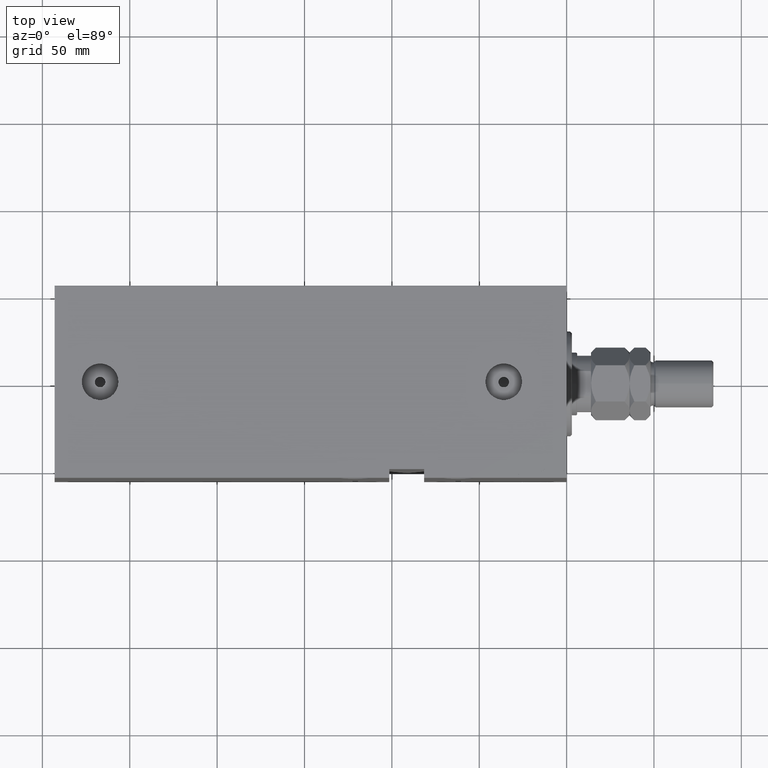
[diagram: clean part render]
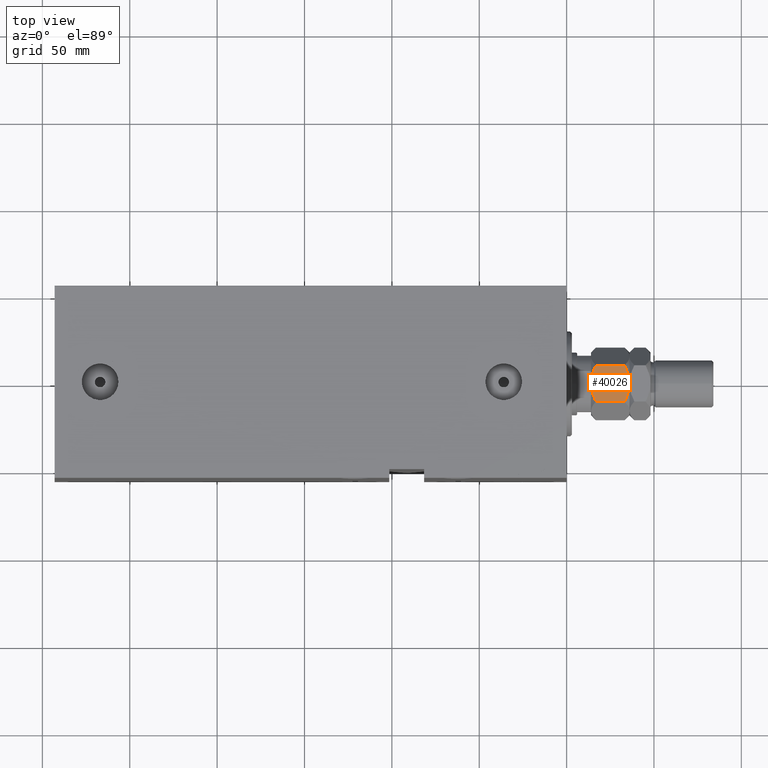
[diagram: same view with one face highlighted and labeled with its STEP entity id]
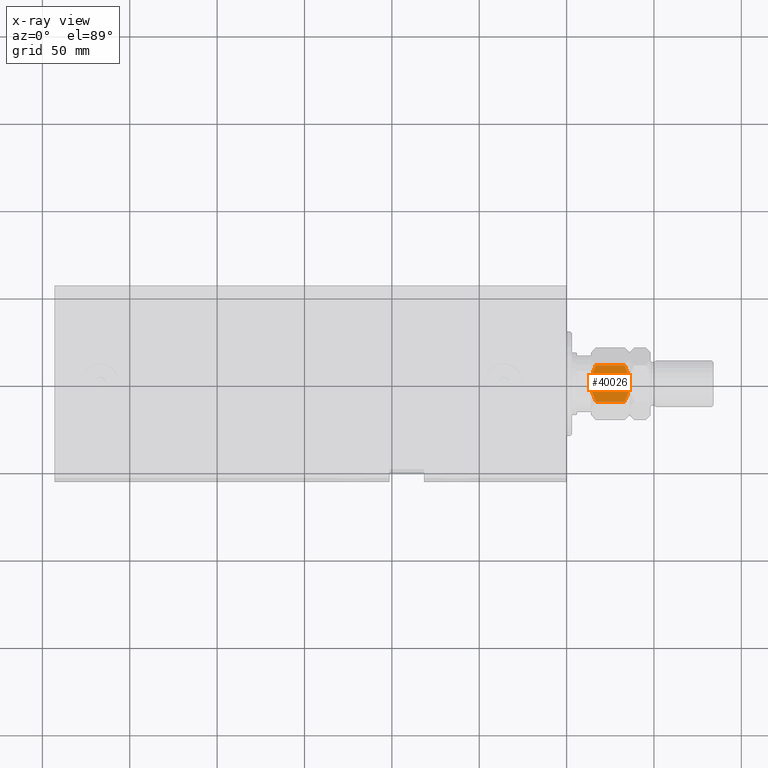
[diagram: x-ray of the same camera — body ghosted, the highlighted face saturated]
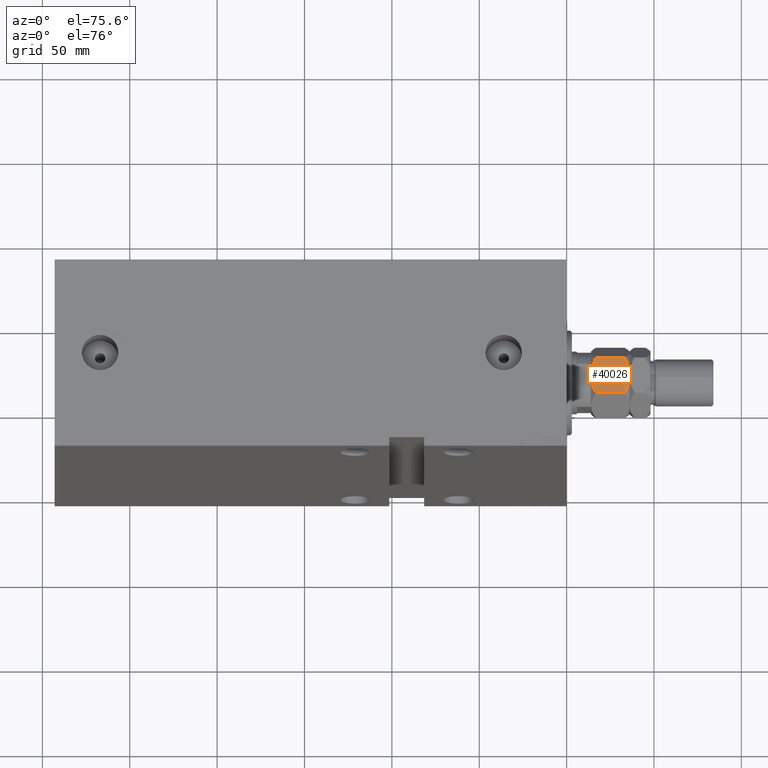
[diagram: same view with one face highlighted and labeled with its STEP entity id]
A machine part, top view. The second image highlights one B-rep face of the part: STEP entity #40026.
The next image is the same camera in x-ray: the body ghosted, the highlighted face saturated — about 0% of this face is hidden behind the body in this view.
A second angle (auxiliary view) of the same face is appended — the face is thin or edge-on in the first view.
In plain terms, the highlighted planar face has unit normal (-0, -0, -1).
Its self-contained STEP definition (entity closure, byte-faithful):
#9 = CARTESIAN_POINT ( 'NONE',  ( -18.00000000000000355, 8.761367480501975891, 2.004069294401323198 ) ) ;
#170 = CARTESIAN_POINT ( 'NONE',  ( -18.00000000000000000, -8.763088818352413156, 2.004854301028774266 ) ) ;
#1963 = ORIENTED_EDGE ( 'NONE', *, *, #25293, .F. ) ;
#2771 = VERTEX_POINT ( 'NONE', #23600 ) ;
#2942 = CARTESIAN_POINT ( 'NONE',  ( -18.00000000000000711, -6.216134505391694098, 20.97498393630432645 ) ) ;
#3028 = CARTESIAN_POINT ( 'NONE',  ( -18.00000000000000000, 10.39230484541327115, 2.784609690826521433 ) ) ;
#3634 = VERTEX_POINT ( 'NONE', #17308 ) ;
#3869 = CARTESIAN_POINT ( 'NONE',  ( -18.00000000000000000, -9.585738860786737092, 2.381326698513256179 ) ) ;
#5616 = DIRECTION ( 'NONE',  ( -0.000000000000000000, -0.000000000000000000, -1.000000000000000000 ) ) ;
#5729 = VERTEX_POINT ( 'NONE', #14358 ) ;
#6648 = CARTESIAN_POINT ( 'NONE',  ( -18.00000000000000000, -7.070713019734865767, 20.67653729751676650 ) ) ;
#7358 = CARTESIAN_POINT ( 'NONE',  ( -18.00000000000000000, -6.209292796908479239, 1.036623049275358754 ) ) ;
#8395 = B_SPLINE_CURVE_WITH_KNOTS ( 'NONE', 3,
 ( #34911, #39548, #31660, #17671, #42789, #32334, #14400, #10900, #45831, #9, #13949, #3028 ),
 .UNSPECIFIED., .F., .F.,
 ( 4, 2, 2, 2, 2, 4 ),
 ( 0.03866324973303089663, 0.04001676336829056158, 0.04137027700355023346, 0.04407730427406956336, 0.04678433154458890020, 0.04949135881510823010 ),
 .UNSPECIFIED. ) ;
#9698 = CARTESIAN_POINT ( 'NONE',  ( -18.00000000000000000, 10.39230484541327293, 19.21539030917347546 ) ) ;
#9816 = VERTEX_POINT ( 'NONE', #9698 ) ;
#10587 = CARTESIAN_POINT ( 'NONE',  ( -18.00000000000000355, -0.4570166227920087199, 22.00000000000001421 ) ) ;
#10900 = CARTESIAN_POINT ( 'NONE',  ( -18.00000000000000000, 6.216134505391694098, 1.025016063695673774 ) ) ;
#11118 = CARTESIAN_POINT ( 'NONE',  ( -18.00000000000000000, 10.39230484541327293, 22.00000000000000000 ) ) ;
#11932 = CARTESIAN_POINT ( 'NONE',  ( -18.00000000000000355, 3.606961701950826438, 21.71780071720124283 ) ) ;
#12126 = CARTESIAN_POINT ( 'NONE',  ( -18.00000000000000000, 10.39230484541327293, 22.00000000000000000 ) ) ;
#12384 = CARTESIAN_POINT ( 'NONE',  ( -18.00000000000000000, 9.585738860786747750, 19.61867330148673716 ) ) ;
#13408 = CARTESIAN_POINT ( 'NONE',  ( -17.99999999999999645, 0.000000000000000000, 22.00000000000000000 ) ) ;
#13858 = CARTESIAN_POINT ( 'NONE',  ( -18.00000000000000355, -3.606660380382266329, 21.66338348051975871 ) ) ;
#13949 = CARTESIAN_POINT ( 'NONE',  ( -18.00000000000000000, 9.585844502997485250, 2.381379519618630702 ) ) ;
#14337 = CARTESIAN_POINT ( 'NONE',  ( -18.00000000000000000, 0.000000000000000000, 0.000000000000000000 ) ) ;
#14358 = CARTESIAN_POINT ( 'NONE',  ( -18.00000000000000000, 0.000000000000000000, 0.000000000000000000 ) ) ;
#14400 = CARTESIAN_POINT ( 'NONE',  ( -18.00000000000000355, 4.484118396622230662, 0.5315467738039389989 ) ) ;
#14876 = CARTESIAN_POINT ( 'NONE',  ( -18.00000000000000000, 10.39230484541327115, 2.784609690826521433 ) ) ;
#15518 = EDGE_CURVE ( 'NONE', #31303, #3634, #41783, .T. ) ;
#15871 = ORIENTED_EDGE ( 'NONE', *, *, #42686, .T. ) ;
#17308 = CARTESIAN_POINT ( 'NONE',  ( -18.00000000000000000, -10.39230484541326582, 19.21539030917347901 ) ) ;
#17671 = CARTESIAN_POINT ( 'NONE',  ( -17.99999999999999645, 1.820915739938816502, 0.08623745797432426363 ) ) ;
#17684 = ORIENTED_EDGE ( 'NONE', *, *, #40299, .F. ) ;
#17885 = PLANE ( 'NONE',  #35026 ) ;
#18495 = ORIENTED_EDGE ( 'NONE', *, *, #35477, .F. ) ;
#19148 = B_SPLINE_CURVE_WITH_KNOTS ( 'NONE', 3,
 ( #43399, #3869, #170, #25279, #39013, #7358, #43182, #21326, #35527, #14337 ),
 .UNSPECIFIED., .F., .F.,
 ( 4, 2, 2, 2, 4 ),
 ( 0.02782233635826646123, 0.03053256470195757008, 0.03188767887380312277, 0.03324279304564867893, 0.03866324973303089663 ),
 .UNSPECIFIED. ) ;
#20298 = EDGE_CURVE ( 'NONE', #3634, #2771, #37500, .T. ) ;
#21081 = CARTESIAN_POINT ( 'NONE',  ( -18.00000000000000000, -10.39230484541326582, 19.21539030917347901 ) ) ;
#21326 = CARTESIAN_POINT ( 'NONE',  ( -18.00000000000000000, -3.606961701950821109, 0.2821992827987603869 ) ) ;
#21381 = DIRECTION ( 'NONE',  ( -0.000000000000000000, 0.000000000000000000, -1.000000000000000000 ) ) ;
#23338 = CARTESIAN_POINT ( 'NONE',  ( -18.00000000000000000, 10.39230484541327293, 19.21539030917347546 ) ) ;
#23600 = CARTESIAN_POINT ( 'NONE',  ( -18.00000000000000000, -10.39230484541326582, 2.784609690826517436 ) ) ;
#24106 = CARTESIAN_POINT ( 'NONE',  ( -18.00000000000000000, -1.820915739938815392, 21.91376254202566543 ) ) ;
#24144 = VECTOR ( 'NONE', #5616, 1000.000000000000000 ) ;
#24805 = CARTESIAN_POINT ( 'NONE',  ( -18.00000000000000000, -0.9155406990339308715, 21.98238456327074530 ) ) ;
#25279 = CARTESIAN_POINT ( 'NONE',  ( -17.99999999999999645, -7.496347219517973670, 1.494764402970788497 ) ) ;
#25293 = EDGE_CURVE ( 'NONE', #5729, #37558, #8395, .T. ) ;
#25905 = ORIENTED_EDGE ( 'NONE', *, *, #15518, .F. ) ;
#26115 = LINE ( 'NONE', #12126, #43981 ) ;
#26123 = CARTESIAN_POINT ( 'NONE',  ( -18.00000000000000000, -10.39230484541326582, 22.00000000000000000 ) ) ;
#26598 = CARTESIAN_POINT ( 'NONE',  ( -18.00000000000000711, 6.209292796908482792, 20.96337695072463703 ) ) ;
#27618 = CARTESIAN_POINT ( 'NONE',  ( -18.00000000000000000, -9.585844502997481698, 19.61862048038136308 ) ) ;
#29383 = DIRECTION ( 'NONE',  ( -0.000000000000000000, -0.000000000000000000, -1.000000000000000000 ) ) ;
#30086 = CARTESIAN_POINT ( 'NONE',  ( -17.99999999999999289, 7.496347219517978999, 20.50523559702920195 ) ) ;
#31303 = VERTEX_POINT ( 'NONE', #37654 ) ;
#31660 = CARTESIAN_POINT ( 'NONE',  ( -17.99999999999999645, 0.9155406990339314266, 0.01761543672925007520 ) ) ;
#32235 = ORIENTED_EDGE ( 'NONE', *, *, #20298, .F. ) ;
#32334 = CARTESIAN_POINT ( 'NONE',  ( -18.00000000000000711, 3.606660380382270326, 0.3366165194802389071 ) ) ;
#33355 = CARTESIAN_POINT ( 'NONE',  ( -18.00000000000000000, 8.763088818352416709, 19.99514569897121774 ) ) ;
#33587 = CARTESIAN_POINT ( 'NONE',  ( -18.00000000000000355, 1.830228188859417182, 22.00000000000001776 ) ) ;
#34911 = CARTESIAN_POINT ( 'NONE',  ( -18.00000000000000000, 0.000000000000000000, 0.000000000000000000 ) ) ;
#35026 = AXIS2_PLACEMENT_3D ( 'NONE', #11118, #36262, #21381 ) ;
#35477 = EDGE_CURVE ( 'NONE', #9816, #31303, #36162, .T. ) ;
#35527 = CARTESIAN_POINT ( 'NONE',  ( -18.00000000000000355, -1.830228188859414518, -1.798420353610330795E-14 ) ) ;
#36162 = B_SPLINE_CURVE_WITH_KNOTS ( 'NONE', 3,
 ( #23338, #12384, #33355, #30086, #41239, #26598, #37524, #11932, #33587, #44495 ),
 .UNSPECIFIED., .F., .F.,
 ( 4, 2, 2, 2, 4 ),
 ( 0.02782233635826646123, 0.03053256470195757355, 0.03188767887380312971, 0.03324279304564868587, 0.03866324973303091050 ),
 .UNSPECIFIED. ) ;
#36262 = DIRECTION ( 'NONE',  ( 1.000000000000000000, 0.000000000000000000, -0.000000000000000000 ) ) ;
#37500 = LINE ( 'NONE', #26123, #24144 ) ;
#37524 = CARTESIAN_POINT ( 'NONE',  ( -17.99999999999999645, 5.777644679957247398, 21.10005375890244039 ) ) ;
#37558 = VERTEX_POINT ( 'NONE', #14876 ) ;
#37654 = CARTESIAN_POINT ( 'NONE',  ( -17.99999999999999645, 0.000000000000000000, 22.00000000000000000 ) ) ;
#39013 = CARTESIAN_POINT ( 'NONE',  ( -18.00000000000000000, -7.068075135443438128, 1.333788718270820350 ) ) ;
#39302 = FACE_OUTER_BOUND ( 'NONE', #42451, .T. ) ;
#39548 = CARTESIAN_POINT ( 'NONE',  ( -18.00000000000000355, 0.4570166227920097191, -1.873996868329094797E-14 ) ) ;
#40026 = ADVANCED_FACE ( 'NONE', ( #39302 ), #17885, .F. ) ;
#40299 = EDGE_CURVE ( 'NONE', #2771, #5729, #19148, .T. ) ;
#41239 = CARTESIAN_POINT ( 'NONE',  ( -17.99999999999999645, 7.068075135443441681, 20.66621128172916499 ) ) ;
#41783 = B_SPLINE_CURVE_WITH_KNOTS ( 'NONE', 3,
 ( #13408, #10587, #24805, #24106, #42017, #13858, #42703, #2942, #6648, #45286, #27618, #21081 ),
 .UNSPECIFIED., .F., .F.,
 ( 4, 2, 2, 2, 2, 4 ),
 ( 0.03866324973303091050, 0.04001676336829057545, 0.04137027700355024040, 0.04407730427406957724, 0.04678433154458891408, 0.04949135881510824397 ),
 .UNSPECIFIED. ) ;
#42017 = CARTESIAN_POINT ( 'NONE',  ( -18.00000000000000000, -2.269920501599952622, 21.86278919860200531 ) ) ;
#42451 = EDGE_LOOP ( 'NONE', ( #17684, #32235, #25905, #18495, #15871, #1963 ) ) ;
#42686 = EDGE_CURVE ( 'NONE', #9816, #37558, #26115, .T. ) ;
#42703 = CARTESIAN_POINT ( 'NONE',  ( -18.00000000000000000, -4.484118396622227110, 21.46845322619605767 ) ) ;
#42789 = CARTESIAN_POINT ( 'NONE',  ( -18.00000000000000000, 2.269920501599953511, 0.1372108013979898844 ) ) ;
#43182 = CARTESIAN_POINT ( 'NONE',  ( -18.00000000000000355, -5.777644679957243845, 0.8999462410975485049 ) ) ;
#43399 = CARTESIAN_POINT ( 'NONE',  ( -18.00000000000000000, -10.39230484541326582, 2.784609690826517436 ) ) ;
#43981 = VECTOR ( 'NONE', #29383, 1000.000000000000000 ) ;
#44495 = CARTESIAN_POINT ( 'NONE',  ( -17.99999999999999645, 0.000000000000000000, 22.00000000000000000 ) ) ;
#45286 = CARTESIAN_POINT ( 'NONE',  ( -18.00000000000000355, -8.761367480501970562, 19.99593070559867414 ) ) ;
#45831 = CARTESIAN_POINT ( 'NONE',  ( -17.99999999999999645, 7.070713019734868432, 1.323462702483232833 ) ) ;